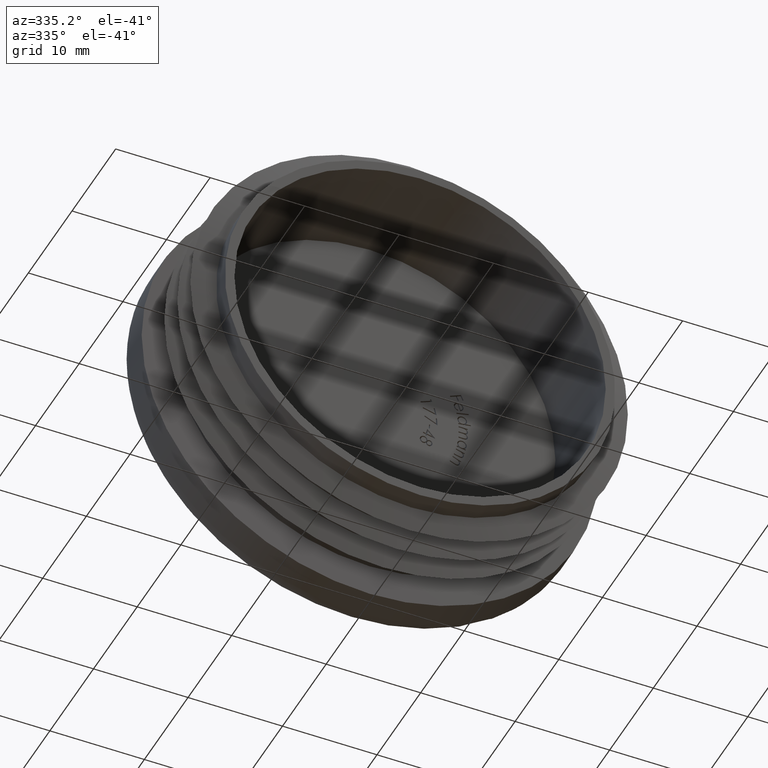
[diagram: clean part render]
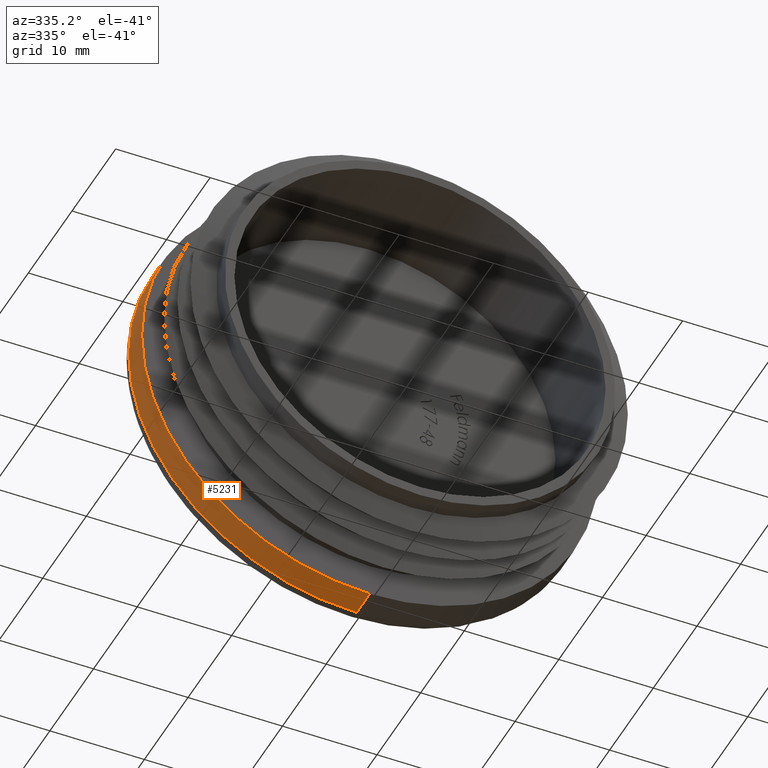
[diagram: same view with one face highlighted and labeled with its STEP entity id]
A machine part, auxiliary view. The second image highlights one B-rep face of the part: STEP entity #5231.
In plain terms, the highlighted cylindrical surface (partial cylindrical patch) has radius 24.15 mm, axis along (-0, -1, -0).
Its self-contained STEP definition (entity closure, byte-faithful):
#331 = ORIENTED_EDGE ( 'NONE', *, *, #7852, .F. ) ;
#350 = CARTESIAN_POINT ( 'NONE',  ( 2.957522019940857900E-015, 3.000000000000000000, 24.14999999999999900 ) ) ;
#501 = LINE ( 'NONE', #7654, #8039 ) ;
#586 = LINE ( 'NONE', #9079, #8348 ) ;
#963 = CARTESIAN_POINT ( 'NONE',  ( 0.0000000000000000000, 0.0000000000000000000, 0.0000000000000000000 ) ) ;
#1295 = CARTESIAN_POINT ( 'NONE',  ( 0.0000000000000000000, 3.000000000000000000, 0.0000000000000000000 ) ) ;
#1468 = DIRECTION ( 'NONE',  ( -0.0000000000000000000, -1.000000000000000000, -0.0000000000000000000 ) ) ;
#1722 = DIRECTION ( 'NONE',  ( 0.0000000000000000000, 0.0000000000000000000, 1.000000000000000000 ) ) ;
#2037 = DIRECTION ( 'NONE',  ( 0.0000000000000000000, 0.0000000000000000000, 1.000000000000000000 ) ) ;
#2417 = FACE_OUTER_BOUND ( 'NONE', #3416, .T. ) ;
#2855 = ORIENTED_EDGE ( 'NONE', *, *, #6798, .T. ) ;
#2957 = CARTESIAN_POINT ( 'NONE',  ( 0.0000000000000000000, 0.0000000000000000000, -24.14999999999999900 ) ) ;
#3416 = EDGE_LOOP ( 'NONE', ( #331, #8158, #2855, #3556 ) ) ;
#3467 = EDGE_CURVE ( 'NONE', #6845, #7163, #5485, .T. ) ;
#3556 = ORIENTED_EDGE ( 'NONE', *, *, #7667, .T. ) ;
#5231 = ADVANCED_FACE ( 'NONE', ( #2417 ), #6151, .T. ) ;
#5485 = CIRCLE ( 'NONE', #8256, 24.14999999999999900 ) ;
#5701 = DIRECTION ( 'NONE',  ( -0.0000000000000000000, -1.000000000000000000, -0.0000000000000000000 ) ) ;
#5729 = AXIS2_PLACEMENT_3D ( 'NONE', #963, #6192, #1722 ) ;
#6151 = CYLINDRICAL_SURFACE ( 'NONE', #8860, 24.14999999999999900 ) ;
#6192 = DIRECTION ( 'NONE',  ( 0.0000000000000000000, 1.000000000000000000, 0.0000000000000000000 ) ) ;
#6504 = DIRECTION ( 'NONE',  ( -0.0000000000000000000, -1.000000000000000000, -0.0000000000000000000 ) ) ;
#6798 = EDGE_CURVE ( 'NONE', #7163, #7218, #501, .T. ) ;
#6845 = VERTEX_POINT ( 'NONE', #350 ) ;
#7163 = VERTEX_POINT ( 'NONE', #7278 ) ;
#7218 = VERTEX_POINT ( 'NONE', #2957 ) ;
#7278 = CARTESIAN_POINT ( 'NONE',  ( 0.0000000000000000000, 3.000000000000000000, -24.14999999999999900 ) ) ;
#7291 = DIRECTION ( 'NONE',  ( 0.0000000000000000000, 0.0000000000000000000, -1.000000000000000000 ) ) ;
#7654 = CARTESIAN_POINT ( 'NONE',  ( 0.0000000000000000000, 5.000000000000000000, -24.14999999999999900 ) ) ;
#7667 = EDGE_CURVE ( 'NONE', #7218, #8133, #9130, .T. ) ;
#7852 = EDGE_CURVE ( 'NONE', #6845, #8133, #586, .T. ) ;
#7956 = CARTESIAN_POINT ( 'NONE',  ( 0.0000000000000000000, 5.000000000000000000, 0.0000000000000000000 ) ) ;
#8039 = VECTOR ( 'NONE', #8304, 1000.000000000000000 ) ;
#8133 = VERTEX_POINT ( 'NONE', #8935 ) ;
#8158 = ORIENTED_EDGE ( 'NONE', *, *, #3467, .T. ) ;
#8256 = AXIS2_PLACEMENT_3D ( 'NONE', #1295, #6504, #2037 ) ;
#8304 = DIRECTION ( 'NONE',  ( -0.0000000000000000000, -1.000000000000000000, -0.0000000000000000000 ) ) ;
#8348 = VECTOR ( 'NONE', #5701, 1000.000000000000000 ) ;
#8860 = AXIS2_PLACEMENT_3D ( 'NONE', #7956, #1468, #7291 ) ;
#8935 = CARTESIAN_POINT ( 'NONE',  ( 2.957522019940857900E-015, 0.0000000000000000000, 24.14999999999999900 ) ) ;
#9079 = CARTESIAN_POINT ( 'NONE',  ( 2.957522019940857900E-015, 5.000000000000000000, 24.14999999999999900 ) ) ;
#9130 = CIRCLE ( 'NONE', #5729, 24.14999999999999900 ) ;